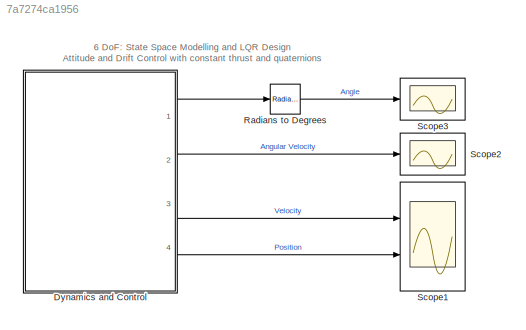
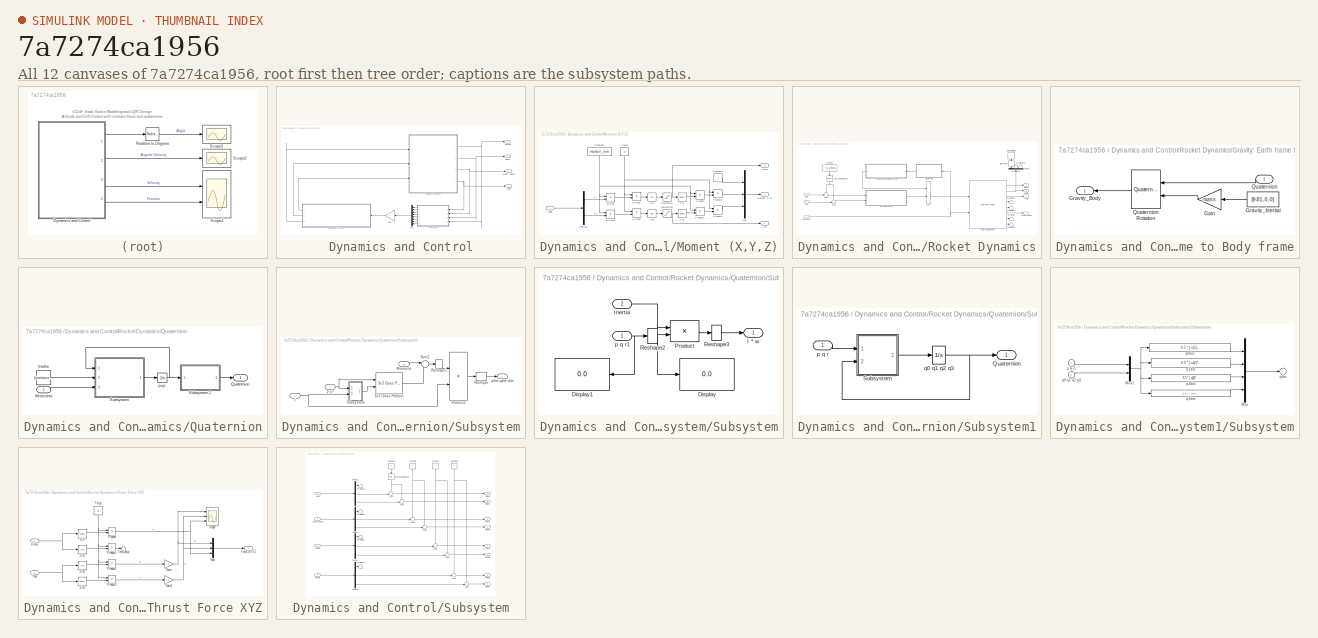
[diagram: thumbnail index - all 12 canvases of the model, root first then tree order]
MODEL slx_7a7274ca1956
KIND model
CONFIG AbsTol = auto
CONFIG EnableMultiTasking = off
CONFIG FixedStep = auto
CONFIG MaxStep = auto
CONFIG MinStep = auto
CONFIG RelTol = 1e-3
CONFIG SampleTimeConstraint = Unconstrained
CONFIG SolverName = VariableStepAuto
CONFIG StartTime = 0.0
CONFIG StopTime = 6
BLOCK [SubSystem] Dynamics and Control
  Ports = [0, 4]
  RequestExecContextInheritance = off
BLOCK [Outport] Dynamics and Control/Angle
BLOCK [Outport] Dynamics and Control/Angular Velocity
  Port = 2
BLOCK [Gain] Dynamics and Control/LQR
  Gain = -K
  Multiplication = Matrix(K*u)
BLOCK [SubSystem] Dynamics and Control/Moment (X,Y,Z)
  Ports = [1, 3]
  RequestExecContextInheritance = off
BLOCK [Trigonometry] Dynamics and Control/Moment (X,Y,Z)/Asin
  Operator = asin
  Ports = [1, 1]
BLOCK [Trigonometry] Dynamics and Control/Moment (X,Y,Z)/Asin1
  Operator = asin
  Ports = [1, 1]
BLOCK [Constant] Dynamics and Control/Moment (X,Y,Z)/Constant1
  NameLocation = left
  Value = moment_arm
BLOCK [Constant] Dynamics and Control/Moment (X,Y,Z)/Constant4
  Value = 0
BLOCK [Demux] Dynamics and Control/Moment (X,Y,Z)/Demux1
  Outputs = 2
  Ports = [1, 2]
BLOCK [Product] Dynamics and Control/Moment (X,Y,Z)/Divide
  Inputs = /*
  Ports = [2, 1]
BLOCK [Product] Dynamics and Control/Moment (X,Y,Z)/Divide1
  Inputs = /*
  Ports = [2, 1]
BLOCK [Product] Dynamics and Control/Moment (X,Y,Z)/Divide2
  Inputs = /*
  Ports = [2, 1]
BLOCK [Product] Dynamics and Control/Moment (X,Y,Z)/Divide3
  Inputs = /*
  Ports = [2, 1]
BLOCK [Inport] Dynamics and Control/Moment (X,Y,Z)/Input 
BLOCK [Outport] Dynamics and Control/Moment (X,Y,Z)/Moment XYZ
  Port = 3
BLOCK [Mux] Dynamics and Control/Moment (X,Y,Z)/Mux
  DisplayOption = bar
  Inputs = 3
  Ports = [3, 1]
BLOCK [Product] Dynamics and Control/Moment (X,Y,Z)/Product
  Ports = [2, 1]
BLOCK [Product] Dynamics and Control/Moment (X,Y,Z)/Product1
  Ports = [2, 1]
BLOCK [Product] Dynamics and Control/Moment (X,Y,Z)/Product2
  Ports = [2, 1]
BLOCK [Product] Dynamics and Control/Moment (X,Y,Z)/Product3
  Ports = [2, 1]
BLOCK [Outport] Dynamics and Control/Moment (X,Y,Z)/Psi
BLOCK [Saturate] Dynamics and Control/Moment (X,Y,Z)/Saturation
  LowerLimit = -0.174
  UpperLimit = 0.174
BLOCK [Saturate] Dynamics and Control/Moment (X,Y,Z)/Saturation1
  LowerLimit = -0.174
  UpperLimit = 0.174
BLOCK [Trigonometry] Dynamics and Control/Moment (X,Y,Z)/Sin
  Ports = [1, 1]
BLOCK [Trigonometry] Dynamics and Control/Moment (X,Y,Z)/Sin1
  Ports = [1, 1]
BLOCK [Outport] Dynamics and Control/Moment (X,Y,Z)/Theta
  Port = 2
BLOCK [Constant] Dynamics and Control/Moment (X,Y,Z)/Thrust
  NameLocation = right
  Value = 15
BLOCK [Mux] Dynamics and Control/Mux
  DisplayOption = bar
  Inputs = 8
  NameLocation = top
  Ports = [8, 1]
BLOCK [Outport] Dynamics and Control/Position
  Port = 4
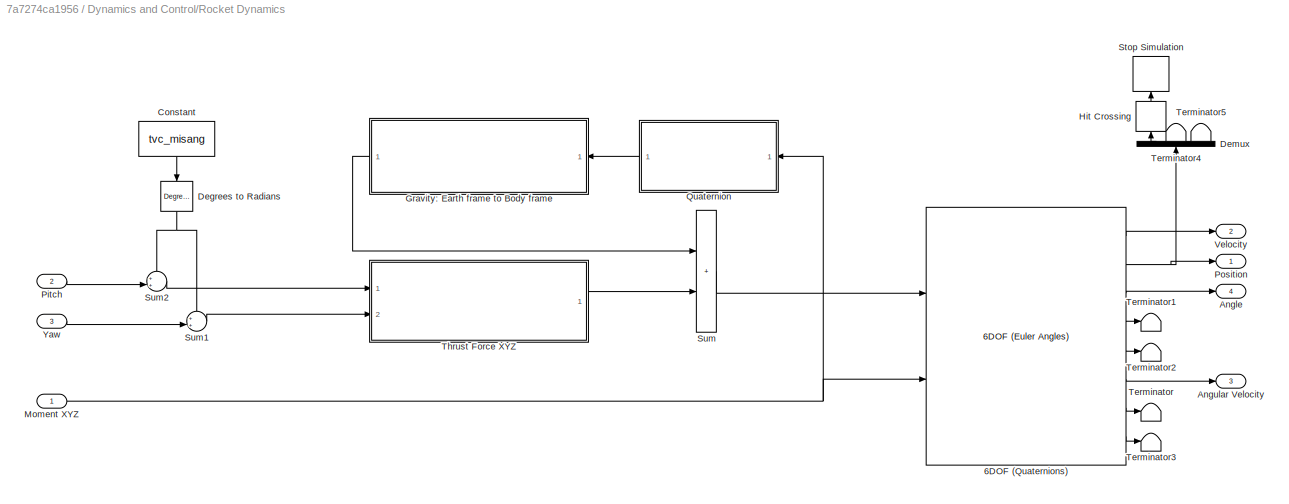
BLOCK [SubSystem] Dynamics and Control/Rocket Dynamics
  Ports = [3, 4]
  RequestExecContextInheritance = off
BLOCK [Reference] Dynamics and Control/Rocket Dynamics/6DOF (Quaternions)  REF=shared6dof/6DOF (Euler Angles)
  Ports = [2, 8]
  SourceBlock = shared6dof/6DOF (Euler Angles)
  SourceProductBaseCode = AE,PW,MT,UV,VE,VP
  SourceType = 6DOF EoM (Body Axis)
BLOCK [Outport] Dynamics and Control/Rocket Dynamics/Angle
  Port = 4
BLOCK [Outport] Dynamics and Control/Rocket Dynamics/Angular Velocity
  Port = 3
BLOCK [Constant] Dynamics and Control/Rocket Dynamics/Constant
  NameLocation = left
  Value = tvc_misang
BLOCK [Reference] Dynamics and Control/Rocket Dynamics/Degrees to Radians  REF=simulink_extras/Transformations/Degrees to
Radians
  NameLocation = left
  Ports = [1, 1]
  SourceBlock = simulink_extras/Transformations/Degrees to\nRadians
  SourceProductBaseCode = SL
  SourceType = DegreesToRadians
BLOCK [Demux] Dynamics and Control/Rocket Dynamics/Demux
  NameLocation = right
  Outputs = 3
  Ports = [1, 3]
BLOCK [SubSystem] Dynamics and Control/Rocket Dynamics/Gravity: Earth frame to Body frame
  Ports = [1, 1]
  RequestExecContextInheritance = off
BLOCK [Gain] Dynamics and Control/Rocket Dynamics/Gravity: Earth frame to Body frame/Gain
  Gain = mass
  NameLocation = top
BLOCK [Outport] Dynamics and Control/Rocket Dynamics/Gravity: Earth frame to Body frame/Gravity_Body
BLOCK [Constant] Dynamics and Control/Rocket Dynamics/Gravity: Earth frame to Body frame/Gravity_Inertial
  Value = [9.81, 0, 0]
BLOCK [Inport] Dynamics and Control/Rocket Dynamics/Gravity: Earth frame to Body frame/Quaternion
  NameLocation = top
BLOCK [Reference] Dynamics and Control/Rocket Dynamics/Gravity: Earth frame to Body frame/Quaternion Rotation  REF=aerolibutil/Quaternion
Rotation
  NameLocation = top
  Ports = [2, 1]
  SourceBlock = aerolibutil/Quaternion\nRotation
  SourceProductBaseCode = AE
  SourceType = Quaternion Rotation
BLOCK [HitCross] Dynamics and Control/Rocket Dynamics/Hit Crossing
  HitCrossingDirection = falling
  NameLocation = right
  Ports = [1, 1]
BLOCK [Inport] Dynamics and Control/Rocket Dynamics/Moment XYZ
BLOCK [Inport] Dynamics and Control/Rocket Dynamics/Pitch
  Port = 2
BLOCK [Outport] Dynamics and Control/Rocket Dynamics/Position
BLOCK [SubSystem] Dynamics and Control/Rocket Dynamics/Quaternion
  Ports = [1, 1]
  RequestExecContextInheritance = off
BLOCK [Constant] Dynamics and Control/Rocket Dynamics/Quaternion/Inertia
  NameLocation = top
  Value = [inertiaxx inertiayy inertiazz].*eye(3)
BLOCK [Inport] Dynamics and Control/Rocket Dynamics/Quaternion/Moments
  PortDimensions = 3
  Unit = N*m
BLOCK [Outport] Dynamics and Control/Rocket Dynamics/Quaternion/Quaternion
  VectorParamsAs1DForOutWhenUnconnected = off
BLOCK [SubSystem] Dynamics and Control/Rocket Dynamics/Quaternion/Subsystem
  Ports = [3, 1]
  RequestExecContextInheritance = off
BLOCK [Reference] Dynamics and Control/Rocket Dynamics/Quaternion/Subsystem/3x3 Cross Product  REF=sharedutil/3x3 Cross Product
  Ports = [2, 1]
  SourceBlock = sharedutil/3x3 Cross Product
  SourceProductBaseCode = AE,PW,MT,UV,VE,VP
  SourceType = CrossProduct
BLOCK [Inport] Dynamics and Control/Rocket Dynamics/Quaternion/Subsystem/I
  Port = 2
BLOCK [Inport] Dynamics and Control/Rocket Dynamics/Quaternion/Subsystem/Moments
  Port = 3
BLOCK [Product] Dynamics and Control/Rocket Dynamics/Quaternion/Subsystem/Product2
  Inputs = */
  Multiplication = Matrix(*)
  NameLocation = top
  OutDataTypeStr = Inherit: Same as first input
  Ports = [2, 1]
  SaturateOnIntegerOverflow = on
BLOCK [Reshape] Dynamics and Control/Rocket Dynamics/Quaternion/Subsystem/Reshape
  Ports = [1, 1]
BLOCK [Reshape] Dynamics and Control/Rocket Dynamics/Quaternion/Subsystem/Reshape1
  OutputDimensionality = Row vector (2-D)
  Ports = [1, 1]
BLOCK [SubSystem] Dynamics and Control/Rocket Dynamics/Quaternion/Subsystem/Subsystem
  Ports = [2, 1]
  RequestExecContextInheritance = off
BLOCK [Display] Dynamics and Control/Rocket Dynamics/Quaternion/Subsystem/Subsystem/Display
  Decimation = 1
  Ports = [1]
BLOCK [Display] Dynamics and Control/Rocket Dynamics/Quaternion/Subsystem/Subsystem/Display1
  Decimation = 1
  NameLocation = top
  Ports = [1]
BLOCK [Outport] Dynamics and Control/Rocket Dynamics/Quaternion/Subsystem/Subsystem/I * w
  VectorParamsAs1DForOutWhenUnconnected = off
BLOCK [Inport] Dynamics and Control/Rocket Dynamics/Quaternion/Subsystem/Subsystem/Inertia
  Port = 2
BLOCK [Product] Dynamics and Control/Rocket Dynamics/Quaternion/Subsystem/Subsystem/Product
  InputSameDT = on
  Multiplication = Matrix(*)
  OutDataTypeStr = Inherit: Same as first input
  Ports = [2, 1]
  SaturateOnIntegerOverflow = on
BLOCK [Reshape] Dynamics and Control/Rocket Dynamics/Quaternion/Subsystem/Subsystem/Reshape2
  OutputDimensionality = Column vector (2-D)
  Ports = [1, 1]
BLOCK [Reshape] Dynamics and Control/Rocket Dynamics/Quaternion/Subsystem/Subsystem/Reshape3
  Ports = [1, 1]
BLOCK [Inport] Dynamics and Control/Rocket Dynamics/Quaternion/Subsystem/Subsystem/p q r1
BLOCK [Sum] Dynamics and Control/Rocket Dynamics/Quaternion/Subsystem/Sum2
  Inputs = |+-
  Ports = [2, 1]
  SaturateOnIntegerOverflow = on
BLOCK [Inport] Dynamics and Control/Rocket Dynamics/Quaternion/Subsystem/p q r
BLOCK [Outport] Dynamics and Control/Rocket Dynamics/Quaternion/Subsystem/pdot qdot rdot
  VectorParamsAs1DForOutWhenUnconnected = off
BLOCK [SubSystem] Dynamics and Control/Rocket Dynamics/Quaternion/Subsystem1
  Ports = [1, 1]
  RequestExecContextInheritance = off
BLOCK [Outport] Dynamics and Control/Rocket Dynamics/Quaternion/Subsystem1/Quaternion
  VectorParamsAs1DForOutWhenUnconnected = off
BLOCK [SubSystem] Dynamics and Control/Rocket Dynamics/Quaternion/Subsystem1/Subsystem
  Ports = [2, 1]
  RequestExecContextInheritance = off
BLOCK [Mux] Dynamics and Control/Rocket Dynamics/Quaternion/Subsystem1/Subsystem/Mux
  DisplayOption = bar
  Ports = [4, 1]
BLOCK [Mux] Dynamics and Control/Rocket Dynamics/Quaternion/Subsystem1/Subsystem/Mux1
  DisplayOption = bar
  Inputs = [3 4]
  Ports = [2, 1]
BLOCK [Inport] Dynamics and Control/Rocket Dynamics/Quaternion/Subsystem1/Subsystem/p q r1
  NameLocation = top
BLOCK [Inport] Dynamics and Control/Rocket Dynamics/Quaternion/Subsystem1/Subsystem/q0 q1 q2 q3
  Port = 2
  PortDimensions = 4
BLOCK [Fcn] Dynamics and Control/Rocket Dynamics/Quaternion/Subsystem1/Subsystem/q0dot
  Expr = -0.5 * ( u[5]*u[1]+u[6]*u[2]+u[7]*u[3])
BLOCK [Fcn] Dynamics and Control/Rocket Dynamics/Quaternion/Subsystem1/Subsystem/q1dot
  Expr = 0.5 * ( u[4]*u[1]+u[6]*u[3]-u[7]*u[2])
BLOCK [Fcn] Dynamics and Control/Rocket Dynamics/Quaternion/Subsystem1/Subsystem/q2dot
  Expr = 0.5 * ( u[4]*u[2]+u[7]*u[1]-u[5]*u[3])
BLOCK [Fcn] Dynamics and Control/Rocket Dynamics/Quaternion/Subsystem1/Subsystem/q3dot
  Expr = 0.5 * ( u[4]*u[3]+u[5]*u[2]-u[6]*u[1])
BLOCK [Outport] Dynamics and Control/Rocket Dynamics/Quaternion/Subsystem1/Subsystem/qdot
  InitialOutput = 0
  VectorParamsAs1DForOutWhenUnconnected = off
BLOCK [Inport] Dynamics and Control/Rocket Dynamics/Quaternion/Subsystem1/p q r
BLOCK [Integrator] Dynamics and Control/Rocket Dynamics/Quaternion/Subsystem1/q0 q1 q2 q3
  InitialCondition = [1, 0, 0, 0]
  Ports = [1, 1]
BLOCK [Integrator] Dynamics and Control/Rocket Dynamics/Quaternion/p,q,r
  Ports = [1, 1]
BLOCK [Stop] Dynamics and Control/Rocket Dynamics/Stop Simulation
  NameLocation = right
BLOCK [Sum] Dynamics and Control/Rocket Dynamics/Sum
  IconShape = rectangular
  Ports = [2, 1]
BLOCK [Sum] Dynamics and Control/Rocket Dynamics/Sum1
  Inputs = ++|
  Ports = [2, 1]
BLOCK [Sum] Dynamics and Control/Rocket Dynamics/Sum2
  Inputs = ++|
  Ports = [2, 1]
BLOCK [Terminator] Dynamics and Control/Rocket Dynamics/Terminator
BLOCK [Terminator] Dynamics and Control/Rocket Dynamics/Terminator1
BLOCK [Terminator] Dynamics and Control/Rocket Dynamics/Terminator2
BLOCK [Terminator] Dynamics and Control/Rocket Dynamics/Terminator3
BLOCK [Terminator] Dynamics and Control/Rocket Dynamics/Terminator4
  NameLocation = right
BLOCK [Terminator] Dynamics and Control/Rocket Dynamics/Terminator5
  NameLocation = right
BLOCK [SubSystem] Dynamics and Control/Rocket Dynamics/Thrust Force XYZ
  Ports = [2, 1]
  RequestExecContextInheritance = off
BLOCK [Outport] Dynamics and Control/Rocket Dynamics/Thrust Force XYZ/Force (XYZ)
BLOCK [Gain] Dynamics and Control/Rocket Dynamics/Thrust Force XYZ/Gain
  Gain = -1
BLOCK [Gain] Dynamics and Control/Rocket Dynamics/Thrust Force XYZ/Gain1
  Gain = -1
BLOCK [Mux] Dynamics and Control/Rocket Dynamics/Thrust Force XYZ/Mux
  DisplayOption = bar
  Inputs = 3
  Ports = [3, 1]
BLOCK [Inport] Dynamics and Control/Rocket Dynamics/Thrust Force XYZ/Pitch
BLOCK [Product] Dynamics and Control/Rocket Dynamics/Thrust Force XYZ/Product
  Ports = [2, 1]
BLOCK [Product] Dynamics and Control/Rocket Dynamics/Thrust Force XYZ/Product1
  Ports = [2, 1]
BLOCK [Product] Dynamics and Control/Rocket Dynamics/Thrust Force XYZ/Product2
  Ports = [2, 1]
BLOCK [Product] Dynamics and Control/Rocket Dynamics/Thrust Force XYZ/Product3
  Ports = [2, 1]
BLOCK [Scope] Dynamics and Control/Rocket Dynamics/Thrust Force XYZ/Scope
  Floating = off
  NumInputPorts = 3
  Ports = [3]
  ScopeSpecificationString = Simulink.scopes.TimeScopeBlockCfg('CurrentConfiguration', extmgr.ConfigurationSet(extmgr.Configuration('Core','General UI',true),extmgr.Configuration('Core','Source UI',true),extmgr.Configuration('Sources','WiredSimulink',true),extmgr.Configuration('Visuals','Time Domain',true,'SerializedDisplays',{struct('MinYLimReal','-18.75','MaxYLimReal','18.75','YLabelReal','','MinYLimMag','0.00000','MaxYLimM...<+1440ch>
BLOCK [Trigonometry] Dynamics and Control/Rocket Dynamics/Thrust Force XYZ/Sin
  Ports = [1, 1]
BLOCK [Trigonometry] Dynamics and Control/Rocket Dynamics/Thrust Force XYZ/Sin1
  Operator = cos
  Ports = [1, 1]
BLOCK [Trigonometry] Dynamics and Control/Rocket Dynamics/Thrust Force XYZ/Sin2
  Operator = cos
  Ports = [1, 1]
BLOCK [Trigonometry] Dynamics and Control/Rocket Dynamics/Thrust Force XYZ/Sin3
  Ports = [1, 1]
BLOCK [Terminator] Dynamics and Control/Rocket Dynamics/Thrust Force XYZ/Terminator
BLOCK [Constant] Dynamics and Control/Rocket Dynamics/Thrust Force XYZ/Thrust
  NameLocation = left
  Value = 15
BLOCK [Inport] Dynamics and Control/Rocket Dynamics/Thrust Force XYZ/Yaw
  Port = 2
BLOCK [Outport] Dynamics and Control/Rocket Dynamics/Velocity
  Port = 2
BLOCK [Inport] Dynamics and Control/Rocket Dynamics/Yaw
  Port = 3
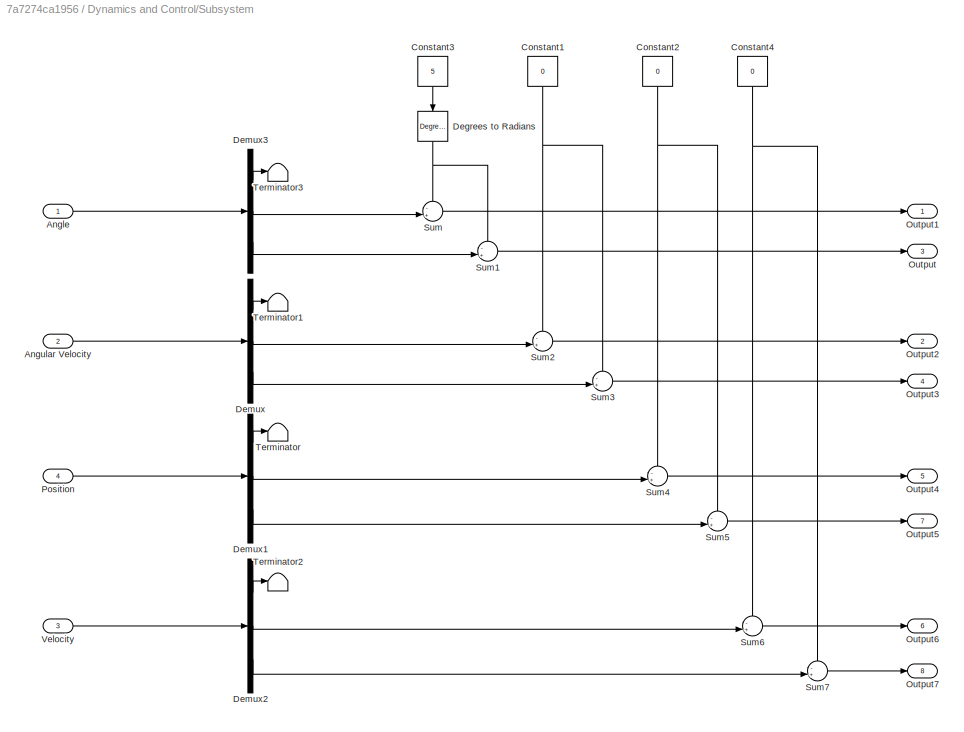
BLOCK [SubSystem] Dynamics and Control/Subsystem
  NameLocation = top
  Ports = [4, 8]
  RequestExecContextInheritance = off
BLOCK [Inport] Dynamics and Control/Subsystem/Angle
BLOCK [Inport] Dynamics and Control/Subsystem/Angular Velocity
  Port = 2
BLOCK [Constant] Dynamics and Control/Subsystem/Constant1
  NameLocation = left
  Value = 0
BLOCK [Constant] Dynamics and Control/Subsystem/Constant2
  NameLocation = left
  Value = 0
BLOCK [Constant] Dynamics and Control/Subsystem/Constant3
  NameLocation = left
  Value = 5
BLOCK [Constant] Dynamics and Control/Subsystem/Constant4
  NameLocation = left
  Value = 0
BLOCK [Reference] Dynamics and Control/Subsystem/Degrees to Radians  REF=simulink_extras/Transformations/Degrees to
Radians
  NameLocation = left
  Ports = [1, 1]
  SourceBlock = simulink_extras/Transformations/Degrees to\nRadians
  SourceProductBaseCode = SL
  SourceType = DegreesToRadians
BLOCK [Demux] Dynamics and Control/Subsystem/Demux
  Outputs = 3
  Ports = [1, 3]
BLOCK [Demux] Dynamics and Control/Subsystem/Demux1
  Outputs = 3
  Ports = [1, 3]
BLOCK [Demux] Dynamics and Control/Subsystem/Demux2
  Outputs = 3
  Ports = [1, 3]
BLOCK [Demux] Dynamics and Control/Subsystem/Demux3
  Outputs = 3
  Ports = [1, 3]
BLOCK [Outport] Dynamics and Control/Subsystem/Output
  Port = 3
BLOCK [Outport] Dynamics and Control/Subsystem/Output1
BLOCK [Outport] Dynamics and Control/Subsystem/Output2
  Port = 2
BLOCK [Outport] Dynamics and Control/Subsystem/Output3
  Port = 4
BLOCK [Outport] Dynamics and Control/Subsystem/Output4
  Port = 5
BLOCK [Outport] Dynamics and Control/Subsystem/Output5
  Port = 7
BLOCK [Outport] Dynamics and Control/Subsystem/Output6
  Port = 6
BLOCK [Outport] Dynamics and Control/Subsystem/Output7
  Port = 8
BLOCK [Inport] Dynamics and Control/Subsystem/Position
  Port = 4
BLOCK [Sum] Dynamics and Control/Subsystem/Sum
  Inputs = -+|
  Ports = [2, 1]
BLOCK [Sum] Dynamics and Control/Subsystem/Sum1
  Inputs = -+|
  Ports = [2, 1]
BLOCK [Sum] Dynamics and Control/Subsystem/Sum2
  Inputs = -+|
  Ports = [2, 1]
BLOCK [Sum] Dynamics and Control/Subsystem/Sum3
  Inputs = -+|
  Ports = [2, 1]
BLOCK [Sum] Dynamics and Control/Subsystem/Sum4
  Inputs = -+|
  Ports = [2, 1]
BLOCK [Sum] Dynamics and Control/Subsystem/Sum5
  Inputs = -+|
  Ports = [2, 1]
BLOCK [Sum] Dynamics and Control/Subsystem/Sum6
  Inputs = -+|
  Ports = [2, 1]
BLOCK [Sum] Dynamics and Control/Subsystem/Sum7
  Inputs = -+|
  Ports = [2, 1]
BLOCK [Terminator] Dynamics and Control/Subsystem/Terminator
BLOCK [Terminator] Dynamics and Control/Subsystem/Terminator1
BLOCK [Terminator] Dynamics and Control/Subsystem/Terminator2
BLOCK [Terminator] Dynamics and Control/Subsystem/Terminator3
BLOCK [Inport] Dynamics and Control/Subsystem/Velocity
  Port = 3
BLOCK [Outport] Dynamics and Control/Velocity
  Port = 3
BLOCK [Reference] Radians to Degrees  REF=simulink_extras/Transformations/Radians
to Degrees
  Ports = [1, 1]
  SourceBlock = simulink_extras/Transformations/Radians\nto Degrees
  SourceProductBaseCode = SL
  SourceType = RadiansToDegrees
BLOCK [Scope] Scope1
  Floating = off
  NumInputPorts = 2
  Ports = [2]
  ScopeSpecificationString = Simulink.scopes.TimeScopeBlockCfg('CurrentConfiguration', extmgr.ConfigurationSet(extmgr.Configuration('Core','General UI',true),extmgr.Configuration('Core','Source UI',true),extmgr.Configuration('Sources','WiredSimulink',true,'DataLoggingVariableName','ScopeData3'),extmgr.Configuration('Visuals','Time Domain',true,'SerializedDisplays',{struct('MinYLimReal','-72.67553','MaxYLimReal','174.74173','Y...<+1652ch>
BLOCK [Scope] Scope2
  Floating = off
  NumInputPorts = 1
  Ports = [1]
  ScopeSpecificationString = Simulink.scopes.TimeScopeBlockCfg('CurrentConfiguration', extmgr.ConfigurationSet(extmgr.Configuration('Core','General UI',true),extmgr.Configuration('Core','Source UI',true),extmgr.Configuration('Sources','WiredSimulink',true,'DataLoggingVariableName','ScopeData4'),extmgr.Configuration('Visuals','Time Domain',true,'SerializedDisplays',{struct('MinYLimReal','-0.24631','MaxYLimReal','0.47484','YLab...<+1673ch>
BLOCK [Scope] Scope3
  Floating = off
  NumInputPorts = 1
  Ports = [1]
  ScopeSpecificationString = Simulink.scopes.TimeScopeBlockCfg('CurrentConfiguration', extmgr.ConfigurationSet(extmgr.Configuration('Core','General UI',true),extmgr.Configuration('Core','Source UI',true),extmgr.Configuration('Sources','WiredSimulink',true,'DataLoggingVariableName','ScopeData2'),extmgr.Configuration('Visuals','Time Domain',true,'SerializedDisplays',{struct('MinYLimReal','-1.576','MaxYLimReal','4.09938','YLabel...<+1674ch>
ANNOTATION (root): 6 DoF: State Space Modelling and LQR Design Attitude and Drift Control with constant thrust and quaternions
LINE Dynamics and Control/LQR:1 -> Dynamics and Control/Moment (X,Y,Z):1
LINE Dynamics and Control/Moment (X,Y,Z)/Asin1:1 -> Dynamics and Control/Moment (X,Y,Z)/Saturation1:1
LINE Dynamics and Control/Moment (X,Y,Z)/Asin:1 -> Dynamics and Control/Moment (X,Y,Z)/Saturation:1
NET Dynamics and Control/Moment (X,Y,Z)/Constant1:1 -> Dynamics and Control/Moment (X,Y,Z)/Divide2:1, Dynamics and Control/Moment (X,Y,Z)/Divide:1, Dynamics and Control/Moment (X,Y,Z)/Product2:1, Dynamics and Control/Moment (X,Y,Z)/Product:1
LINE Dynamics and Control/Moment (X,Y,Z)/Constant4:1 -> Dynamics and Control/Moment (X,Y,Z)/Mux:1
LINE Dynamics and Control/Moment (X,Y,Z)/Demux1:1 -> Dynamics and Control/Moment (X,Y,Z)/Divide:2
LINE Dynamics and Control/Moment (X,Y,Z)/Demux1:2 -> Dynamics and Control/Moment (X,Y,Z)/Divide2:2
LINE Dynamics and Control/Moment (X,Y,Z)/Divide1:1 -> Dynamics and Control/Moment (X,Y,Z)/Asin:1
LINE Dynamics and Control/Moment (X,Y,Z)/Divide2:1 -> Dynamics and Control/Moment (X,Y,Z)/Divide3:2
LINE Dynamics and Control/Moment (X,Y,Z)/Divide3:1 -> Dynamics and Control/Moment (X,Y,Z)/Asin1:1
LINE Dynamics and Control/Moment (X,Y,Z)/Divide:1 -> Dynamics and Control/Moment (X,Y,Z)/Divide1:2
LINE Dynamics and Control/Moment (X,Y,Z)/Input :1 -> Dynamics and Control/Moment (X,Y,Z)/Demux1:1
LINE Dynamics and Control/Moment (X,Y,Z)/Mux:1 -> Dynamics and Control/Moment (X,Y,Z)/Moment XYZ:1
LINE Dynamics and Control/Moment (X,Y,Z)/Product1:1 -> Dynamics and Control/Moment (X,Y,Z)/Mux:2
LINE Dynamics and Control/Moment (X,Y,Z)/Product2:1 -> Dynamics and Control/Moment (X,Y,Z)/Product3:2
LINE Dynamics and Control/Moment (X,Y,Z)/Product3:1 -> Dynamics and Control/Moment (X,Y,Z)/Mux:3
LINE Dynamics and Control/Moment (X,Y,Z)/Product:1 -> Dynamics and Control/Moment (X,Y,Z)/Product1:2
NET Dynamics and Control/Moment (X,Y,Z)/Saturation1:1 -> Dynamics and Control/Moment (X,Y,Z)/Psi:1, Dynamics and Control/Moment (X,Y,Z)/Sin1:1
NET Dynamics and Control/Moment (X,Y,Z)/Saturation:1 -> Dynamics and Control/Moment (X,Y,Z)/Sin:1, Dynamics and Control/Moment (X,Y,Z)/Theta:1
LINE Dynamics and Control/Moment (X,Y,Z)/Sin1:1 -> Dynamics and Control/Moment (X,Y,Z)/Product2:2
LINE Dynamics and Control/Moment (X,Y,Z)/Sin:1 -> Dynamics and Control/Moment (X,Y,Z)/Product:2
NET Dynamics and Control/Moment (X,Y,Z)/Thrust:1 -> Dynamics and Control/Moment (X,Y,Z)/Divide1:1, Dynamics and Control/Moment (X,Y,Z)/Divide3:1, Dynamics and Control/Moment (X,Y,Z)/Product1:1, Dynamics and Control/Moment (X,Y,Z)/Product3:1
LINE Dynamics and Control/Moment (X,Y,Z):1 -> Dynamics and Control/Rocket Dynamics:3
LINE Dynamics and Control/Moment (X,Y,Z):2 -> Dynamics and Control/Rocket Dynamics:2
LINE Dynamics and Control/Moment (X,Y,Z):3 -> Dynamics and Control/Rocket Dynamics:1
LINE Dynamics and Control/Mux:1 -> Dynamics and Control/LQR:1
LINE Dynamics and Control/Rocket Dynamics/6DOF (Quaternions):1 -> Dynamics and Control/Rocket Dynamics/Velocity:1
NET Dynamics and Control/Rocket Dynamics/6DOF (Quaternions):2 -> Dynamics and Control/Rocket Dynamics/Demux:1, Dynamics and Control/Rocket Dynamics/Position:1
LINE Dynamics and Control/Rocket Dynamics/6DOF (Quaternions):3 -> Dynamics and Control/Rocket Dynamics/Angle:1
LINE Dynamics and Control/Rocket Dynamics/6DOF (Quaternions):4 -> Dynamics and Control/Rocket Dynamics/Terminator1:1
LINE Dynamics and Control/Rocket Dynamics/6DOF (Quaternions):5 -> Dynamics and Control/Rocket Dynamics/Terminator2:1
LINE Dynamics and Control/Rocket Dynamics/6DOF (Quaternions):6 -> Dynamics and Control/Rocket Dynamics/Angular Velocity:1
LINE Dynamics and Control/Rocket Dynamics/6DOF (Quaternions):7 -> Dynamics and Control/Rocket Dynamics/Terminator:1
LINE Dynamics and Control/Rocket Dynamics/6DOF (Quaternions):8 -> Dynamics and Control/Rocket Dynamics/Terminator3:1
LINE Dynamics and Control/Rocket Dynamics/Constant:1 -> Dynamics and Control/Rocket Dynamics/Degrees to Radians:1
NET Dynamics and Control/Rocket Dynamics/Degrees to Radians:1 -> Dynamics and Control/Rocket Dynamics/Sum1:1, Dynamics and Control/Rocket Dynamics/Sum2:1
LINE Dynamics and Control/Rocket Dynamics/Demux:1 -> Dynamics and Control/Rocket Dynamics/Hit Crossing:1
LINE Dynamics and Control/Rocket Dynamics/Demux:2 -> Dynamics and Control/Rocket Dynamics/Terminator4:1
LINE Dynamics and Control/Rocket Dynamics/Demux:3 -> Dynamics and Control/Rocket Dynamics/Terminator5:1
LINE Dynamics and Control/Rocket Dynamics/Gravity: Earth frame to Body frame/Gain:1 -> Dynamics and Control/Rocket Dynamics/Gravity: Earth frame to Body frame/Quaternion Rotation:2
LINE Dynamics and Control/Rocket Dynamics/Gravity: Earth frame to Body frame/Gravity_Inertial:1 -> Dynamics and Control/Rocket Dynamics/Gravity: Earth frame to Body frame/Gain:1
LINE Dynamics and Control/Rocket Dynamics/Gravity: Earth frame to Body frame/Quaternion Rotation:1 -> Dynamics and Control/Rocket Dynamics/Gravity: Earth frame to Body frame/Gravity_Body:1
LINE Dynamics and Control/Rocket Dynamics/Gravity: Earth frame to Body frame/Quaternion:1 -> Dynamics and Control/Rocket Dynamics/Gravity: Earth frame to Body frame/Quaternion Rotation:1
LINE Dynamics and Control/Rocket Dynamics/Gravity: Earth frame to Body frame:1 -> Dynamics and Control/Rocket Dynamics/Sum:1
LINE Dynamics and Control/Rocket Dynamics/Hit Crossing:1 -> Dynamics and Control/Rocket Dynamics/Stop Simulation:1
NET Dynamics and Control/Rocket Dynamics/Moment XYZ:1 -> Dynamics and Control/Rocket Dynamics/6DOF (Quaternions):2, Dynamics and Control/Rocket Dynamics/Quaternion:1
LINE Dynamics and Control/Rocket Dynamics/Pitch:1 -> Dynamics and Control/Rocket Dynamics/Sum2:2
LINE Dynamics and Control/Rocket Dynamics/Quaternion/Inertia:1 -> Dynamics and Control/Rocket Dynamics/Quaternion/Subsystem:2
LINE Dynamics and Control/Rocket Dynamics/Quaternion/Moments:1 -> Dynamics and Control/Rocket Dynamics/Quaternion/Subsystem:3
LINE Dynamics and Control/Rocket Dynamics/Quaternion/Subsystem/3x3 Cross Product:1 -> Dynamics and Control/Rocket Dynamics/Quaternion/Subsystem/Sum2:2
NET Dynamics and Control/Rocket Dynamics/Quaternion/Subsystem/I:1 -> Dynamics and Control/Rocket Dynamics/Quaternion/Subsystem/Product2:2, Dynamics and Control/Rocket Dynamics/Quaternion/Subsystem/Subsystem:2
LINE Dynamics and Control/Rocket Dynamics/Quaternion/Subsystem/Moments:1 -> Dynamics and Control/Rocket Dynamics/Quaternion/Subsystem/Sum2:1
LINE Dynamics and Control/Rocket Dynamics/Quaternion/Subsystem/Product2:1 -> Dynamics and Control/Rocket Dynamics/Quaternion/Subsystem/Reshape:1
LINE Dynamics and Control/Rocket Dynamics/Quaternion/Subsystem/Reshape1:1 -> Dynamics and Control/Rocket Dynamics/Quaternion/Subsystem/Product2:1
LINE Dynamics and Control/Rocket Dynamics/Quaternion/Subsystem/Reshape:1 -> Dynamics and Control/Rocket Dynamics/Quaternion/Subsystem/pdot qdot rdot:1
LINE Dynamics and Control/Rocket Dynamics/Quaternion/Subsystem/Subsystem/Inertia:1 -> Dynamics and Control/Rocket Dynamics/Quaternion/Subsystem/Subsystem/Product:1
LINE Dynamics and Control/Rocket Dynamics/Quaternion/Subsystem/Subsystem/Product:1 -> Dynamics and Control/Rocket Dynamics/Quaternion/Subsystem/Subsystem/Reshape3:1
NET Dynamics and Control/Rocket Dynamics/Quaternion/Subsystem/Subsystem/Reshape2:1 -> Dynamics and Control/Rocket Dynamics/Quaternion/Subsystem/Subsystem/Display:1, Dynamics and Control/Rocket Dynamics/Quaternion/Subsystem/Subsystem/Product:2
LINE Dynamics and Control/Rocket Dynamics/Quaternion/Subsystem/Subsystem/Reshape3:1 -> Dynamics and Control/Rocket Dynamics/Quaternion/Subsystem/Subsystem/I * w:1
NET Dynamics and Control/Rocket Dynamics/Quaternion/Subsystem/Subsystem/p q r1:1 -> Dynamics and Control/Rocket Dynamics/Quaternion/Subsystem/Subsystem/Display1:1, Dynamics and Control/Rocket Dynamics/Quaternion/Subsystem/Subsystem/Reshape2:1
LINE Dynamics and Control/Rocket Dynamics/Quaternion/Subsystem/Subsystem:1 -> Dynamics and Control/Rocket Dynamics/Quaternion/Subsystem/3x3 Cross Product:2
LINE Dynamics and Control/Rocket Dynamics/Quaternion/Subsystem/Sum2:1 -> Dynamics and Control/Rocket Dynamics/Quaternion/Subsystem/Reshape1:1
NET Dynamics and Control/Rocket Dynamics/Quaternion/Subsystem/p q r:1 -> Dynamics and Control/Rocket Dynamics/Quaternion/Subsystem/3x3 Cross Product:1, Dynamics and Control/Rocket Dynamics/Quaternion/Subsystem/Subsystem:1
NET Dynamics and Control/Rocket Dynamics/Quaternion/Subsystem1/Subsystem/Mux1:1 -> Dynamics and Control/Rocket Dynamics/Quaternion/Subsystem1/Subsystem/q0dot:1, Dynamics and Control/Rocket Dynamics/Quaternion/Subsystem1/Subsystem/q1dot:1, Dynamics and Control/Rocket Dynamics/Quaternion/Subsystem1/Subsystem/q2dot:1, Dynamics and Control/Rocket Dynamics/Quaternion/Subsystem1/Subsystem/q3dot:1
LINE Dynamics and Control/Rocket Dynamics/Quaternion/Subsystem1/Subsystem/Mux:1 -> Dynamics and Control/Rocket Dynamics/Quaternion/Subsystem1/Subsystem/qdot:1
LINE Dynamics and Control/Rocket Dynamics/Quaternion/Subsystem1/Subsystem/p q r1:1 -> Dynamics and Control/Rocket Dynamics/Quaternion/Subsystem1/Subsystem/Mux1:1
LINE Dynamics and Control/Rocket Dynamics/Quaternion/Subsystem1/Subsystem/q0 q1 q2 q3:1 -> Dynamics and Control/Rocket Dynamics/Quaternion/Subsystem1/Subsystem/Mux1:2
LINE Dynamics and Control/Rocket Dynamics/Quaternion/Subsystem1/Subsystem/q0dot:1 -> Dynamics and Control/Rocket Dynamics/Quaternion/Subsystem1/Subsystem/Mux:1
LINE Dynamics and Control/Rocket Dynamics/Quaternion/Subsystem1/Subsystem/q1dot:1 -> Dynamics and Control/Rocket Dynamics/Quaternion/Subsystem1/Subsystem/Mux:2
LINE Dynamics and Control/Rocket Dynamics/Quaternion/Subsystem1/Subsystem/q2dot:1 -> Dynamics and Control/Rocket Dynamics/Quaternion/Subsystem1/Subsystem/Mux:3
LINE Dynamics and Control/Rocket Dynamics/Quaternion/Subsystem1/Subsystem/q3dot:1 -> Dynamics and Control/Rocket Dynamics/Quaternion/Subsystem1/Subsystem/Mux:4
LINE Dynamics and Control/Rocket Dynamics/Quaternion/Subsystem1/Subsystem:1 -> Dynamics and Control/Rocket Dynamics/Quaternion/Subsystem1/q0 q1 q2 q3:1
LINE Dynamics and Control/Rocket Dynamics/Quaternion/Subsystem1/p q r:1 -> Dynamics and Control/Rocket Dynamics/Quaternion/Subsystem1/Subsystem:1
NET Dynamics and Control/Rocket Dynamics/Quaternion/Subsystem1/q0 q1 q2 q3:1 -> Dynamics and Control/Rocket Dynamics/Quaternion/Subsystem1/Quaternion:1, Dynamics and Control/Rocket Dynamics/Quaternion/Subsystem1/Subsystem:2
LINE Dynamics and Control/Rocket Dynamics/Quaternion/Subsystem1:1 -> Dynamics and Control/Rocket Dynamics/Quaternion/Quaternion:1
LINE Dynamics and Control/Rocket Dynamics/Quaternion/Subsystem:1 -> Dynamics and Control/Rocket Dynamics/Quaternion/p,q,r:1
NET Dynamics and Control/Rocket Dynamics/Quaternion/p,q,r:1 -> Dynamics and Control/Rocket Dynamics/Quaternion/Subsystem1:1, Dynamics and Control/Rocket Dynamics/Quaternion/Subsystem:1
LINE Dynamics and Control/Rocket Dynamics/Quaternion:1 -> Dynamics and Control/Rocket Dynamics/Gravity: Earth frame to Body frame:1
LINE Dynamics and Control/Rocket Dynamics/Sum1:1 -> Dynamics and Control/Rocket Dynamics/Thrust Force XYZ:2
LINE Dynamics and Control/Rocket Dynamics/Sum2:1 -> Dynamics and Control/Rocket Dynamics/Thrust Force XYZ:1
LINE Dynamics and Control/Rocket Dynamics/Sum:1 -> Dynamics and Control/Rocket Dynamics/6DOF (Quaternions):1
NET Dynamics and Control/Rocket Dynamics/Thrust Force XYZ/Gain1:1 -> Dynamics and Control/Rocket Dynamics/Thrust Force XYZ/Mux:2, Dynamics and Control/Rocket Dynamics/Thrust Force XYZ/Scope:2
NET Dynamics and Control/Rocket Dynamics/Thrust Force XYZ/Gain:1 -> Dynamics and Control/Rocket Dynamics/Thrust Force XYZ/Mux:1, Dynamics and Control/Rocket Dynamics/Thrust Force XYZ/Scope:1
LINE Dynamics and Control/Rocket Dynamics/Thrust Force XYZ/Mux:1 -> Dynamics and Control/Rocket Dynamics/Thrust Force XYZ/Force (XYZ):1
NET Dynamics and Control/Rocket Dynamics/Thrust Force XYZ/Pitch:1 -> Dynamics and Control/Rocket Dynamics/Thrust Force XYZ/Sin1:1, Dynamics and Control/Rocket Dynamics/Thrust Force XYZ/Sin:1
LINE Dynamics and Control/Rocket Dynamics/Thrust Force XYZ/Product1:1 -> Dynamics and Control/Rocket Dynamics/Thrust Force XYZ/Terminator:1
LINE Dynamics and Control/Rocket Dynamics/Thrust Force XYZ/Product2:1 -> Dynamics and Control/Rocket Dynamics/Thrust Force XYZ/Gain:1
LINE Dynamics and Control/Rocket Dynamics/Thrust Force XYZ/Product3:1 -> Dynamics and Control/Rocket Dynamics/Thrust Force XYZ/Gain1:1
NET Dynamics and Control/Rocket Dynamics/Thrust Force XYZ/Product:1 -> Dynamics and Control/Rocket Dynamics/Thrust Force XYZ/Mux:3, Dynamics and Control/Rocket Dynamics/Thrust Force XYZ/Scope:3
LINE Dynamics and Control/Rocket Dynamics/Thrust Force XYZ/Sin1:1 -> Dynamics and Control/Rocket Dynamics/Thrust Force XYZ/Product1:2
LINE Dynamics and Control/Rocket Dynamics/Thrust Force XYZ/Sin2:1 -> Dynamics and Control/Rocket Dynamics/Thrust Force XYZ/Product2:2
LINE Dynamics and Control/Rocket Dynamics/Thrust Force XYZ/Sin3:1 -> Dynamics and Control/Rocket Dynamics/Thrust Force XYZ/Product3:2
LINE Dynamics and Control/Rocket Dynamics/Thrust Force XYZ/Sin:1 -> Dynamics and Control/Rocket Dynamics/Thrust Force XYZ/Product:2
NET Dynamics and Control/Rocket Dynamics/Thrust Force XYZ/Thrust:1 -> Dynamics and Control/Rocket Dynamics/Thrust Force XYZ/Product1:1, Dynamics and Control/Rocket Dynamics/Thrust Force XYZ/Product2:1, Dynamics and Control/Rocket Dynamics/Thrust Force XYZ/Product3:1, Dynamics and Control/Rocket Dynamics/Thrust Force XYZ/Product:1
NET Dynamics and Control/Rocket Dynamics/Thrust Force XYZ/Yaw:1 -> Dynamics and Control/Rocket Dynamics/Thrust Force XYZ/Sin2:1, Dynamics and Control/Rocket Dynamics/Thrust Force XYZ/Sin3:1
LINE Dynamics and Control/Rocket Dynamics/Thrust Force XYZ:1 -> Dynamics and Control/Rocket Dynamics/Sum:2
LINE Dynamics and Control/Rocket Dynamics/Yaw:1 -> Dynamics and Control/Rocket Dynamics/Sum1:2
NET Dynamics and Control/Rocket Dynamics:1 -> Dynamics and Control/Position:1, Dynamics and Control/Subsystem:4
NET Dynamics and Control/Rocket Dynamics:2 -> Dynamics and Control/Subsystem:3, Dynamics and Control/Velocity:1
NET Dynamics and Control/Rocket Dynamics:3 -> Dynamics and Control/Angular Velocity:1, Dynamics and Control/Subsystem:2
NET Dynamics and Control/Rocket Dynamics:4 -> Dynamics and Control/Angle:1, Dynamics and Control/Subsystem:1
LINE Dynamics and Control/Subsystem/Angle:1 -> Dynamics and Control/Subsystem/Demux3:1
LINE Dynamics and Control/Subsystem/Angular Velocity:1 -> Dynamics and Control/Subsystem/Demux:1
NET Dynamics and Control/Subsystem/Constant1:1 -> Dynamics and Control/Subsystem/Sum2:1, Dynamics and Control/Subsystem/Sum3:1
NET Dynamics and Control/Subsystem/Constant2:1 -> Dynamics and Control/Subsystem/Sum4:1, Dynamics and Control/Subsystem/Sum5:1
LINE Dynamics and Control/Subsystem/Constant3:1 -> Dynamics and Control/Subsystem/Degrees to Radians:1
NET Dynamics and Control/Subsystem/Constant4:1 -> Dynamics and Control/Subsystem/Sum6:1, Dynamics and Control/Subsystem/Sum7:1
NET Dynamics and Control/Subsystem/Degrees to Radians:1 -> Dynamics and Control/Subsystem/Sum1:1, Dynamics and Control/Subsystem/Sum:1
LINE Dynamics and Control/Subsystem/Demux1:1 -> Dynamics and Control/Subsystem/Terminator:1
LINE Dynamics and Control/Subsystem/Demux1:2 -> Dynamics and Control/Subsystem/Sum4:2
LINE Dynamics and Control/Subsystem/Demux1:3 -> Dynamics and Control/Subsystem/Sum5:2
LINE Dynamics and Control/Subsystem/Demux2:1 -> Dynamics and Control/Subsystem/Terminator2:1
LINE Dynamics and Control/Subsystem/Demux2:2 -> Dynamics and Control/Subsystem/Sum6:2
LINE Dynamics and Control/Subsystem/Demux2:3 -> Dynamics and Control/Subsystem/Sum7:2
LINE Dynamics and Control/Subsystem/Demux3:1 -> Dynamics and Control/Subsystem/Terminator3:1
LINE Dynamics and Control/Subsystem/Demux3:2 -> Dynamics and Control/Subsystem/Sum:2
LINE Dynamics and Control/Subsystem/Demux3:3 -> Dynamics and Control/Subsystem/Sum1:2
LINE Dynamics and Control/Subsystem/Demux:1 -> Dynamics and Control/Subsystem/Terminator1:1
LINE Dynamics and Control/Subsystem/Demux:2 -> Dynamics and Control/Subsystem/Sum2:2
LINE Dynamics and Control/Subsystem/Demux:3 -> Dynamics and Control/Subsystem/Sum3:2
LINE Dynamics and Control/Subsystem/Position:1 -> Dynamics and Control/Subsystem/Demux1:1
LINE Dynamics and Control/Subsystem/Sum1:1 -> Dynamics and Control/Subsystem/Output:1
LINE Dynamics and Control/Subsystem/Sum2:1 -> Dynamics and Control/Subsystem/Output2:1
LINE Dynamics and Control/Subsystem/Sum3:1 -> Dynamics and Control/Subsystem/Output3:1
LINE Dynamics and Control/Subsystem/Sum4:1 -> Dynamics and Control/Subsystem/Output4:1
LINE Dynamics and Control/Subsystem/Sum5:1 -> Dynamics and Control/Subsystem/Output5:1
LINE Dynamics and Control/Subsystem/Sum6:1 -> Dynamics and Control/Subsystem/Output6:1
LINE Dynamics and Control/Subsystem/Sum7:1 -> Dynamics and Control/Subsystem/Output7:1
LINE Dynamics and Control/Subsystem/Sum:1 -> Dynamics and Control/Subsystem/Output1:1
LINE Dynamics and Control/Subsystem/Velocity:1 -> Dynamics and Control/Subsystem/Demux2:1
LINE Dynamics and Control/Subsystem:1 -> Dynamics and Control/Mux:1
LINE Dynamics and Control/Subsystem:2 -> Dynamics and Control/Mux:2
LINE Dynamics and Control/Subsystem:3 -> Dynamics and Control/Mux:3
LINE Dynamics and Control/Subsystem:4 -> Dynamics and Control/Mux:4
LINE Dynamics and Control/Subsystem:5 -> Dynamics and Control/Mux:5
LINE Dynamics and Control/Subsystem:6 -> Dynamics and Control/Mux:6
LINE Dynamics and Control/Subsystem:7 -> Dynamics and Control/Mux:7
LINE Dynamics and Control/Subsystem:8 -> Dynamics and Control/Mux:8
LINE Dynamics and Control:1 -> Radians to Degrees:1
LINE Dynamics and Control:2 -> Scope2:1
LINE Dynamics and Control:3 -> Scope1:1
LINE Dynamics and Control:4 -> Scope1:2
LINE Radians to Degrees:1 -> Scope3:1
note: NET lines group one-source signal fan-out (src -> all destinations, sorted); 1:1 wires keep LINE
